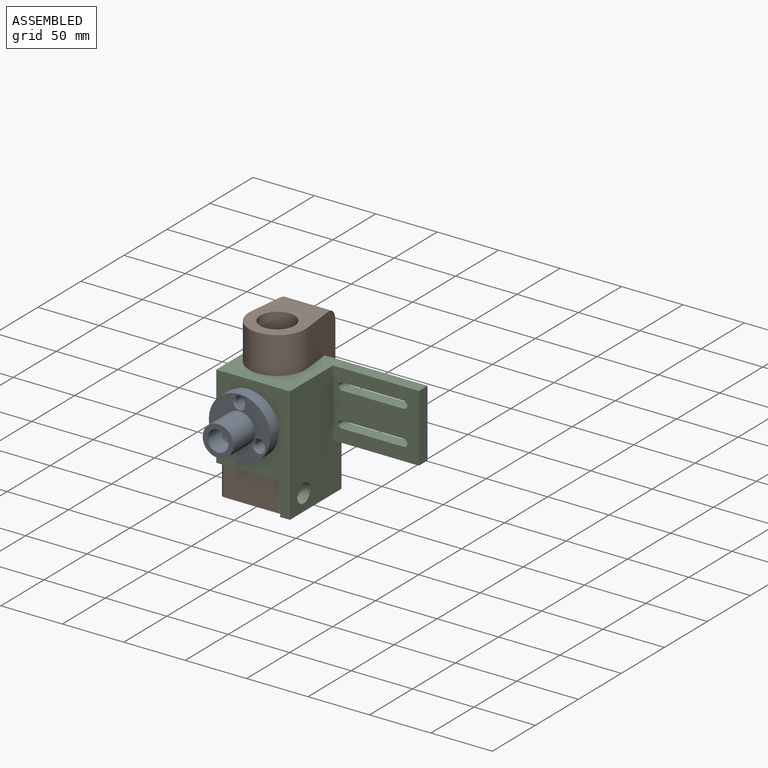
[diagram: assembled view]
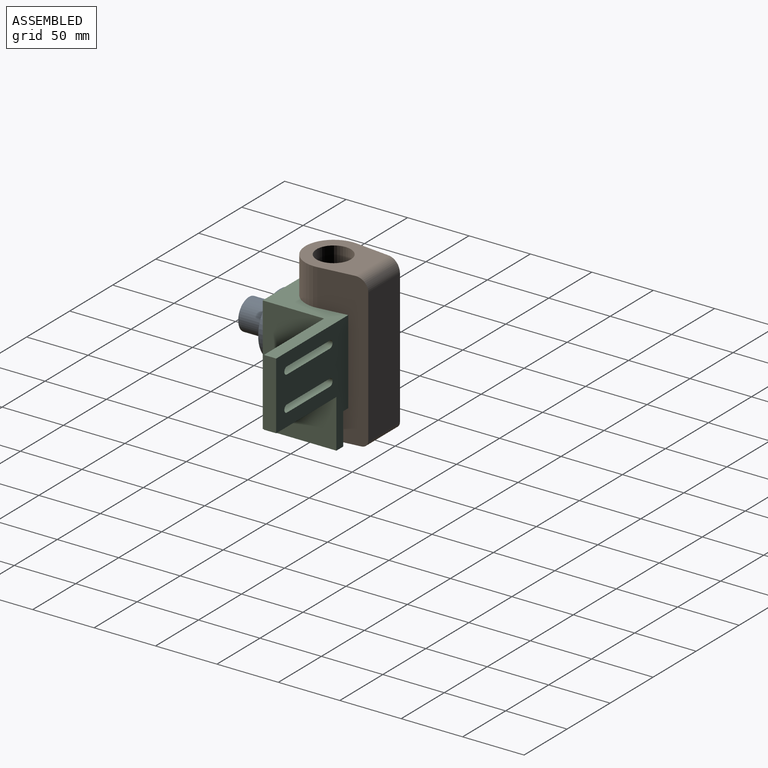
[diagram: assembled view, second angle]
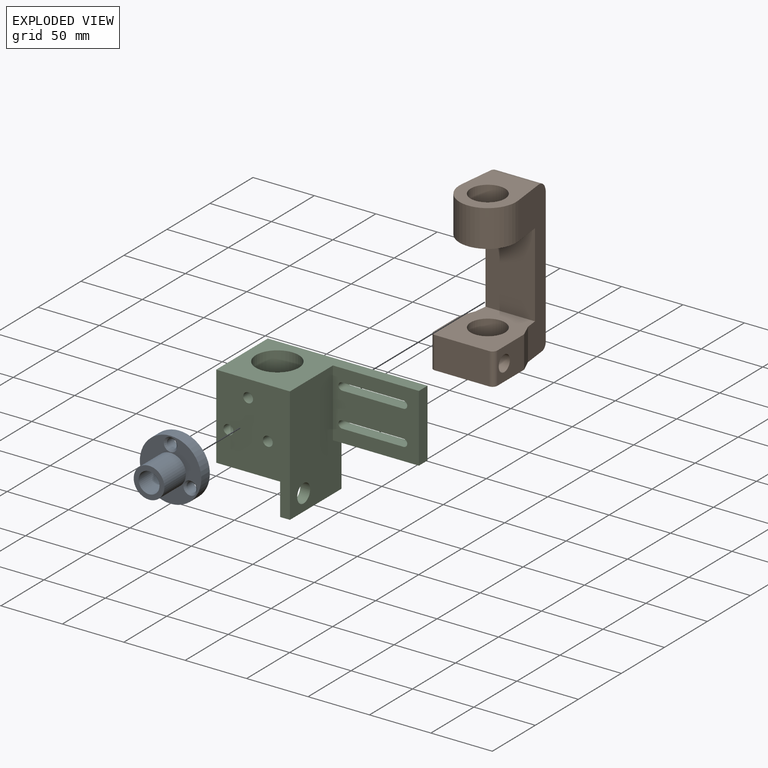
[diagram: exploded view]
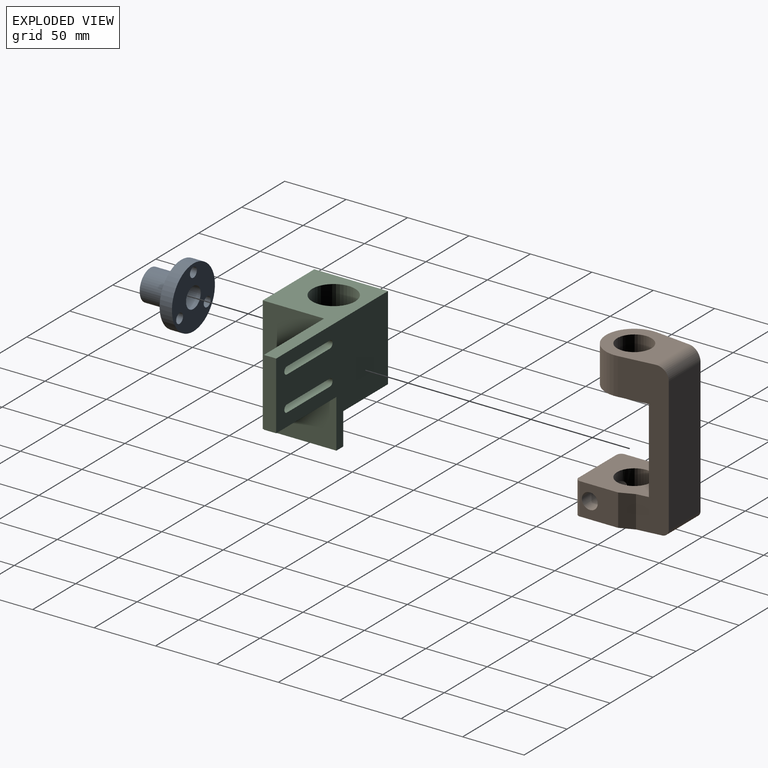
[diagram: exploded view, second angle]
ASSEMBLY  parts=3 mates=4
PART A: 12 faces, bbox 50x35x50 mm
  f0: cylinder r=25mm len=50mm, axis (0,1,0), area 1570.8mm2, adj f1,f2
  f1: plane 50x50mm, normal (0,-1,0), area 1187.5mm2, adj f0,f3,f9,f10,f11
  f2: plane 50x50mm, normal (0,1,0), area 1585.7mm2, adj f0,f5,f6,f7,f8
  f3: cylinder r=12.5mm len=25mm, axis (0,1,0), area 1963.5mm2, adj f1,f4
  f4: plane 25x25mm, normal (0,-1,0), area 263.9mm2, adj f3,f5
  f5: cylinder r=8.5mm len=35mm, axis (0,-1,0), area 1869.2mm2, adj f2,f4
  f6: cylinder r=4mm len=8.5mm, axis (0,-1,0), area 213.6mm2, adj f2,f10
  f7: cylinder r=4mm len=8.5mm, axis (0,-1,0), area 213.6mm2, adj f2,f11
  f8: cylinder r=4mm len=8.5mm, axis (0,-1,0), area 213.6mm2, adj f2,f9
  f9: cone r=4mm half-angle=45deg, axis (0,-1,0), area 63.3mm2, adj f1,f8
  f10: cone r=4mm half-angle=45deg, axis (0,-1,0), area 63.3mm2, adj f1,f6
  f11: cone r=4mm half-angle=45deg, axis (0,-1,0), area 63.3mm2, adj f1,f7
PART B: 21 faces, bbox 52x71x124.5 mm
  f0: plane 44x26mm, normal (0,-1,0), area 1144mm2, adj f10,f11,f17,f18
  f1: plane 124.5x38.38mm, normal (0.99,0.11,0), area 2813.9mm2, adj f4,f7,f8,f9,f10,f11,f12,f13
  f2: plane 124.5x38.38mm, normal (-0.99,0.11,0), area 2813.9mm2, adj f3,f7,f8,f9,f10,f11,f12,f13
  f3: plane 26x11.25mm, normal (-0.92,0.39,0), area 317.1mm2, adj f2,f6,f10,f11
  f4: plane 26x11.25mm, normal (0.92,0.39,0), area 317.1mm2, adj f1,f5,f10,f11
  f5: plane 31x26mm, normal (1,0,0), area 673.3mm2, adj f4,f10,f11,f16,f17
  f6: plane 31x26mm, normal (-1,0,0), area 673.3mm2, adj f3,f10,f11,f16,f18
  f7: cylinder r=23mm len=46mm, axis (0,0,-1), area 2325.2mm2, adj f1,f2,f9,f13
  f8: plane 109.5x36.9mm, normal (0,1,0), area 4040.5mm2, adj f1,f2,f19,f20
  f9: plane 54x46mm, normal (0,0,1), area 1540.1mm2, adj f1,f2,f7,f14,f19
  f10: plane 66x52mm, normal (0,0,-1), area 2525.5mm2, adj f0,f1,f2,f3,f4,f5,f6,f15
  f11: plane 56x52mm, normal (0,0,1), area 2133.6mm2, adj f0,f1,f2,f3,f4,f5,f6,f12
  f12: plane 68.5x40.34mm, normal (0,-1,0), area 2763.3mm2, adj f1,f2,f11,f13
  f13: plane 49x46mm, normal (0,0,-1), area 1341.3mm2, adj f1,f2,f7,f12,f14
  f14: cylinder r=14mm len=30mm, axis (0,0,1), area 2638.9mm2, adj f9,f13
  f15: cylinder r=14mm len=28mm, axis (0,0,1), area 2146.8mm2, adj f10,f11,f16
  f16: cylinder r=6.5mm len=52mm, axis (-1,0,0), area 1975.2mm2, adj f5,f6,f15
  f17: cylinder r=4mm len=26mm, axis (0,0,-1), area 163.4mm2, adj f0,f5,f10,f11
  f18: cylinder r=4mm len=26mm, axis (0,0,-1), area 163.4mm2, adj f0,f6,f10,f11
  f19: cylinder r=10mm len=39.19mm, axis (1,0,0), area 592.7mm2, adj f1,f2,f8,f9
  f20: cylinder r=5mm len=38.05mm, axis (-1,0,0), area 293.1mm2, adj f1,f2,f8,f10
PART C: 27 faces, bbox 130x60x94.5 mm
  f0: plane 130x60mm, normal (0,0,1), area 3337.9mm2, adj f1,f5,f6,f7,f8,f10,f11
  f1: plane 68.5x60mm, normal (-1,0,0), area 4110mm2, adj f0,f2,f6,f7
  f2: plane 60x52mm, normal (0,0,-1), area 2157.9mm2, adj f1,f3,f6,f7,f8
  f3: plane 60x26mm, normal (-1,0,0), area 1383.3mm2, adj f2,f4,f6,f7,f26
  f4: plane 60x8mm, normal (0,0,-1), area 480mm2, adj f3,f5,f6,f7
  f5: plane 94.5x60mm, normal (1,0,0), area 4943.3mm2, adj f0,f4,f6,f7,f9,f10,f26
  f6: plane 94.5x60mm, normal (0,-1,0), area 4167.2mm2, adj f0,f1,f2,f3,f4,f5,f12,f14
  f7: plane 130x94.5mm, normal (0,1,0), area 7511.5mm2, adj f0,f1,f2,f3,f4,f5,f9,f11
  f8: cylinder r=17.5mm len=68.5mm, axis (0,0,1), area 7532mm2, adj f0,f2
  f9: plane 70x10mm, normal (0,0,-1), area 700mm2, adj f5,f7,f10,f11
  f10: plane 70x55mm, normal (0,-1,0), area 3193.5mm2, adj f0,f5,f9,f11,f18,f19,f20,f21
  f11: plane 55x10mm, normal (1,0,0), area 550mm2, adj f0,f7,f9,f10
  f12: cylinder r=4mm len=15mm, axis (0,-1,0), area 377mm2, adj f6,f13
  f13: plane 8x8mm, normal (0,-1,0), area 50.3mm2, adj f12
  f14: cylinder r=4mm len=15mm, axis (0,-1,0), area 377mm2, adj f6,f15
  f15: plane 8x8mm, normal (0,-1,0), area 50.3mm2, adj f14
  f16: cylinder r=4mm len=15mm, axis (0,-1,0), area 377mm2, adj f6,f17
  f17: plane 8x8mm, normal (0,-1,0), area 50.3mm2, adj f16
  f18: cylinder r=3mm len=10mm, axis (0,1,0), area 94.2mm2, adj f7,f10,f19,f20
  f19: plane 50x10mm, normal (0,0,1), area 500mm2, adj f7,f10,f18,f21
  f20: plane 50x10mm, normal (0,0,-1), area 500mm2, adj f7,f10,f18,f21
  f21: cylinder r=3mm len=10mm, axis (0,1,0), area 94.2mm2, adj f7,f10,f19,f20
  f22: cylinder r=3mm len=10mm, axis (0,1,0), area 94.2mm2, adj f7,f10,f23,f24
  f23: plane 50x10mm, normal (0,0,1), area 500mm2, adj f7,f10,f22,f25
  f24: plane 50x10mm, normal (0,0,-1), area 500mm2, adj f7,f10,f22,f25
  f25: cylinder r=3mm len=10mm, axis (0,1,0), area 94.2mm2, adj f7,f10,f23,f24
  f26: cylinder r=7.5mm len=15mm, axis (-1,0,0), area 377mm2, adj f3,f5
PLACE A rot(axis=(-0.03,0.56,-0.83),0deg) t=(0,0,0)mm
PLACE B at identity fixed
PLACE C at identity
MATE revolute C.f14 <-> A.f10  axis (0,-1,0) through (-16.02,-34,-9.25)mm
MATE parallel C.f7 <-> B.f12  axis (0,1,0) through (32.57,26,-0.44)mm
MATE revolute C.f12 <-> A.f8  axis (0,-1,0) through (0,-34,18.5)mm
MATE revolute C.f8 <-> B.f14  axis (0,0,1) through (0,0,32.25)mm
